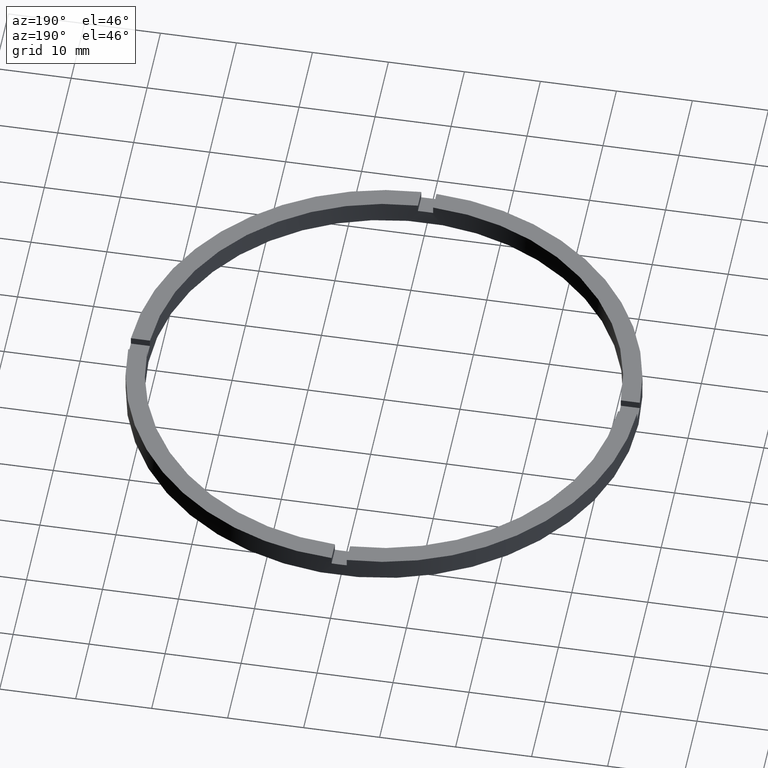
[diagram: clean part render]
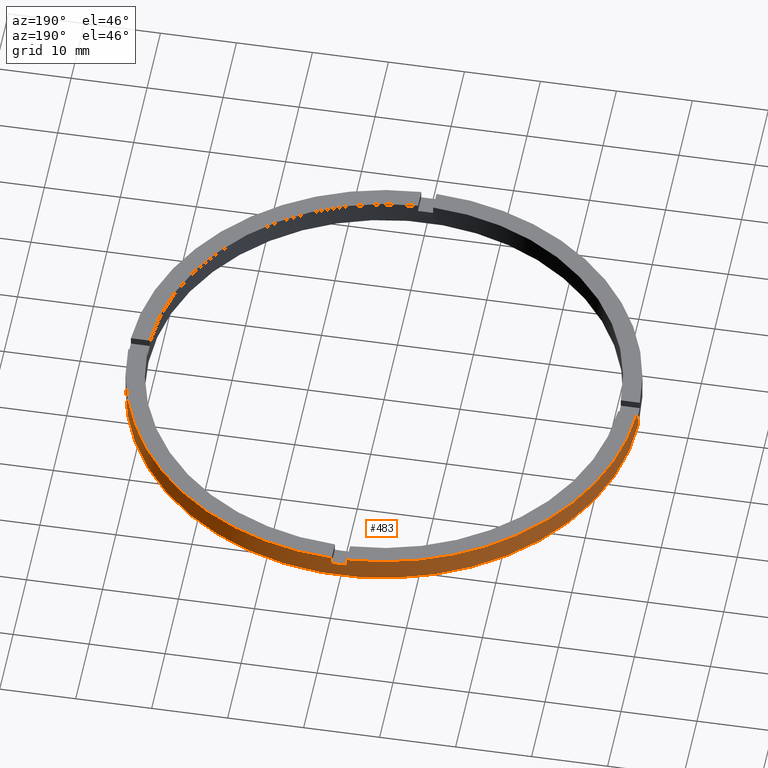
[diagram: same view with one face highlighted and labeled with its STEP entity id]
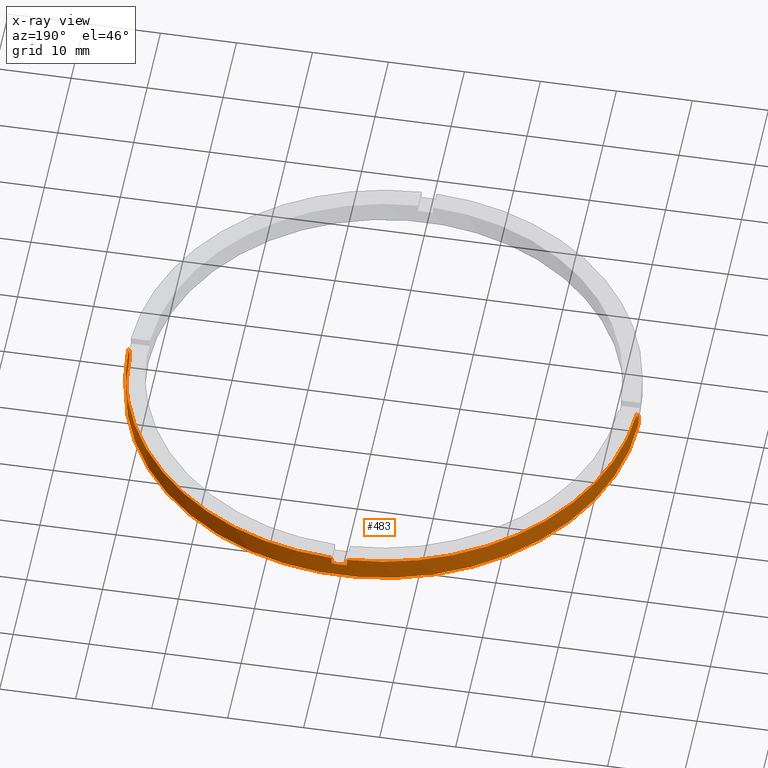
[diagram: x-ray of the same camera — body ghosted, the highlighted face saturated]
A machine part, auxiliary view. The second image highlights one B-rep face of the part: STEP entity #483.
The next image is the same camera in x-ray: the body ghosted, the highlighted face saturated — about 0% of this face is hidden behind the body in this view.
In plain terms, the highlighted cylindrical surface (partial cylindrical patch) has radius 33.5 mm, axis along (-0, -0, -1).
Its self-contained STEP definition (entity closure, byte-faithful):
#4 = EDGE_CURVE ( 'NONE', #711, #41, #443, .T. ) ;
#8 = CIRCLE ( 'NONE', #248, 33.50000000000000000 ) ;
#13 = EDGE_CURVE ( 'NONE', #188, #596, #182, .T. ) ;
#22 = ORIENTED_EDGE ( 'NONE', *, *, #759, .T. ) ;
#25 = EDGE_CURVE ( 'NONE', #188, #80, #120, .T. ) ;
#29 = DIRECTION ( 'NONE',  ( -0.000000000000000000, -0.000000000000000000, -1.000000000000000000 ) ) ;
#31 = ORIENTED_EDGE ( 'NONE', *, *, #668, .T. ) ;
#39 = VECTOR ( 'NONE', #29, 1000.000000000000000 ) ;
#40 = AXIS2_PLACEMENT_3D ( 'NONE', #116, #269, #658 ) ;
#41 = VERTEX_POINT ( 'NONE', #523 ) ;
#71 = DIRECTION ( 'NONE',  ( 0.000000000000000000, 0.000000000000000000, 1.000000000000000000 ) ) ;
#73 = DIRECTION ( 'NONE',  ( 0.000000000000000000, 0.000000000000000000, 1.000000000000000000 ) ) ;
#80 = VERTEX_POINT ( 'NONE', #436 ) ;
#109 = EDGE_CURVE ( 'NONE', #299, #80, #379, .T. ) ;
#111 = DIRECTION ( 'NONE',  ( 1.000000000000000000, 0.000000000000000000, 0.000000000000000000 ) ) ;
#115 = VERTEX_POINT ( 'NONE', #471 ) ;
#116 = CARTESIAN_POINT ( 'NONE',  ( 0.000000000000000000, 0.000000000000000000, 3.000000000000000000 ) ) ;
#120 = LINE ( 'NONE', #479, #372 ) ;
#123 = AXIS2_PLACEMENT_3D ( 'NONE', #742, #332, #261 ) ;
#130 = CARTESIAN_POINT ( 'NONE',  ( 0.000000000000000000, 0.000000000000000000, 2.000000000000000000 ) ) ;
#135 = ORIENTED_EDGE ( 'NONE', *, *, #722, .T. ) ;
#136 = CARTESIAN_POINT ( 'NONE',  ( 33.50000000000000000, 4.102566777143633774E-15, 3.000000000000000000 ) ) ;
#145 = CIRCLE ( 'NONE', #499, 33.50000000000000000 ) ;
#155 = CYLINDRICAL_SURFACE ( 'NONE', #123, 33.50000000000000000 ) ;
#157 = FACE_OUTER_BOUND ( 'NONE', #575, .T. ) ;
#158 = CARTESIAN_POINT ( 'NONE',  ( 33.48507130050644776, 0.9999999999998416822, 3.000000000000000000 ) ) ;
#182 = CIRCLE ( 'NONE', #478, 33.50000000000000000 ) ;
#188 = VERTEX_POINT ( 'NONE', #739 ) ;
#224 = DIRECTION ( 'NONE',  ( 1.000000000000000000, 0.000000000000000000, 0.000000000000000000 ) ) ;
#225 = AXIS2_PLACEMENT_3D ( 'NONE', #744, #500, #505 ) ;
#229 = DIRECTION ( 'NONE',  ( 0.000000000000000000, 0.000000000000000000, 1.000000000000000000 ) ) ;
#234 = CARTESIAN_POINT ( 'NONE',  ( -33.50000000000000000, 0.000000000000000000, 3.000000000000000000 ) ) ;
#243 = LINE ( 'NONE', #136, #777 ) ;
#246 = VECTOR ( 'NONE', #728, 1000.000000000000000 ) ;
#248 = AXIS2_PLACEMENT_3D ( 'NONE', #753, #652, #470 ) ;
#253 = AXIS2_PLACEMENT_3D ( 'NONE', #130, #510, #111 ) ;
#260 = VECTOR ( 'NONE', #71, 1000.000000000000000 ) ;
#261 = DIRECTION ( 'NONE',  ( -1.000000000000000000, 0.000000000000000000, 0.000000000000000000 ) ) ;
#265 = LINE ( 'NONE', #395, #246 ) ;
#267 = EDGE_CURVE ( 'NONE', #371, #637, #574, .T. ) ;
#269 = DIRECTION ( 'NONE',  ( 0.000000000000000000, 0.000000000000000000, 1.000000000000000000 ) ) ;
#281 = VERTEX_POINT ( 'NONE', #598 ) ;
#290 = ORIENTED_EDGE ( 'NONE', *, *, #267, .F. ) ;
#299 = VERTEX_POINT ( 'NONE', #669 ) ;
#301 = ORIENTED_EDGE ( 'NONE', *, *, #25, .T. ) ;
#306 = CARTESIAN_POINT ( 'NONE',  ( -33.50000000000000000, 0.000000000000000000, 2.000000000000000000 ) ) ;
#326 = ORIENTED_EDGE ( 'NONE', *, *, #677, .F. ) ;
#332 = DIRECTION ( 'NONE',  ( -0.000000000000000000, -0.000000000000000000, -1.000000000000000000 ) ) ;
#356 = DIRECTION ( 'NONE',  ( -0.000000000000000000, -0.000000000000000000, -1.000000000000000000 ) ) ;
#371 = VERTEX_POINT ( 'NONE', #306 ) ;
#372 = VECTOR ( 'NONE', #476, 1000.000000000000000 ) ;
#379 = CIRCLE ( 'NONE', #253, 33.50000000000000000 ) ;
#386 = ORIENTED_EDGE ( 'NONE', *, *, #4, .F. ) ;
#395 = CARTESIAN_POINT ( 'NONE',  ( 0.9999999999999753530, 33.48507130050644776, 3.000000000000000000 ) ) ;
#433 = EDGE_CURVE ( 'NONE', #115, #371, #145, .T. ) ;
#434 = CARTESIAN_POINT ( 'NONE',  ( 0.000000000000000000, 0.000000000000000000, 3.000000000000000000 ) ) ;
#436 = CARTESIAN_POINT ( 'NONE',  ( -1.000000000000024647, 33.48507130050644065, 2.000000000000000000 ) ) ;
#440 = ORIENTED_EDGE ( 'NONE', *, *, #109, .F. ) ;
#443 = CIRCLE ( 'NONE', #225, 33.50000000000000000 ) ;
#450 = CARTESIAN_POINT ( 'NONE',  ( -33.48507130050644776, 0.9999999999999735767, 3.000000000000000000 ) ) ;
#460 = VERTEX_POINT ( 'NONE', #158 ) ;
#470 = DIRECTION ( 'NONE',  ( 1.000000000000000000, 0.000000000000000000, 0.000000000000000000 ) ) ;
#471 = CARTESIAN_POINT ( 'NONE',  ( -33.48507130050644776, 0.9999999999999735767, 2.000000000000000000 ) ) ;
#476 = DIRECTION ( 'NONE',  ( -0.000000000000000000, -0.000000000000000000, -1.000000000000000000 ) ) ;
#478 = AXIS2_PLACEMENT_3D ( 'NONE', #434, #229, #224 ) ;
#479 = CARTESIAN_POINT ( 'NONE',  ( -1.000000000000024647, 33.48507130050644065, 3.000000000000000000 ) ) ;
#483 = ADVANCED_FACE ( 'NONE', ( #157 ), #155, .T. ) ;
#499 = AXIS2_PLACEMENT_3D ( 'NONE', #774, #73, #781 ) ;
#500 = DIRECTION ( 'NONE',  ( 0.000000000000000000, 0.000000000000000000, 1.000000000000000000 ) ) ;
#505 = DIRECTION ( 'NONE',  ( 1.000000000000000000, 0.000000000000000000, 0.000000000000000000 ) ) ;
#509 = VECTOR ( 'NONE', #643, 1000.000000000000000 ) ;
#510 = DIRECTION ( 'NONE',  ( 0.000000000000000000, -0.000000000000000000, 1.000000000000000000 ) ) ;
#523 = CARTESIAN_POINT ( 'NONE',  ( 33.48507130050644776, 0.9999999999998416822, 2.000000000000000000 ) ) ;
#532 = CIRCLE ( 'NONE', #40, 33.50000000000000000 ) ;
#549 = ORIENTED_EDGE ( 'NONE', *, *, #690, .T. ) ;
#557 = CARTESIAN_POINT ( 'NONE',  ( -33.50000000000000000, 0.000000000000000000, 0.000000000000000000 ) ) ;
#574 = LINE ( 'NONE', #234, #39 ) ;
#575 = EDGE_LOOP ( 'NONE', ( #386, #549, #31, #290, #698, #22, #691, #301, #440, #135, #326, #713 ) ) ;
#596 = VERTEX_POINT ( 'NONE', #733 ) ;
#598 = CARTESIAN_POINT ( 'NONE',  ( 0.9999999999999753530, 33.48507130050644776, 3.000000000000000000 ) ) ;
#630 = EDGE_CURVE ( 'NONE', #460, #41, #783, .T. ) ;
#637 = VERTEX_POINT ( 'NONE', #557 ) ;
#643 = DIRECTION ( 'NONE',  ( -0.000000000000000000, -0.000000000000000000, -1.000000000000000000 ) ) ;
#648 = VERTEX_POINT ( 'NONE', #697 ) ;
#652 = DIRECTION ( 'NONE',  ( 0.000000000000000000, 0.000000000000000000, 1.000000000000000000 ) ) ;
#658 = DIRECTION ( 'NONE',  ( 1.000000000000000000, 0.000000000000000000, 0.000000000000000000 ) ) ;
#668 = EDGE_CURVE ( 'NONE', #648, #637, #8, .T. ) ;
#669 = CARTESIAN_POINT ( 'NONE',  ( 0.9999999999999753530, 33.48507130050644776, 2.000000000000000000 ) ) ;
#674 = CARTESIAN_POINT ( 'NONE',  ( 33.50000000000000000, 4.102566777143633774E-15, 2.000000000000000000 ) ) ;
#677 = EDGE_CURVE ( 'NONE', #460, #281, #532, .T. ) ;
#690 = EDGE_CURVE ( 'NONE', #711, #648, #243, .T. ) ;
#691 = ORIENTED_EDGE ( 'NONE', *, *, #13, .F. ) ;
#697 = CARTESIAN_POINT ( 'NONE',  ( 33.50000000000000000, 4.102566777143633774E-15, 0.000000000000000000 ) ) ;
#698 = ORIENTED_EDGE ( 'NONE', *, *, #433, .F. ) ;
#711 = VERTEX_POINT ( 'NONE', #674 ) ;
#713 = ORIENTED_EDGE ( 'NONE', *, *, #630, .T. ) ;
#722 = EDGE_CURVE ( 'NONE', #299, #281, #265, .T. ) ;
#728 = DIRECTION ( 'NONE',  ( 0.000000000000000000, 0.000000000000000000, 1.000000000000000000 ) ) ;
#733 = CARTESIAN_POINT ( 'NONE',  ( -33.48507130050644776, 0.9999999999999735767, 3.000000000000000000 ) ) ;
#739 = CARTESIAN_POINT ( 'NONE',  ( -1.000000000000024647, 33.48507130050644065, 3.000000000000000000 ) ) ;
#742 = CARTESIAN_POINT ( 'NONE',  ( 0.000000000000000000, 0.000000000000000000, 3.000000000000000000 ) ) ;
#744 = CARTESIAN_POINT ( 'NONE',  ( 0.000000000000000000, 0.000000000000000000, 2.000000000000000000 ) ) ;
#746 = CARTESIAN_POINT ( 'NONE',  ( 33.48507130050644776, 0.9999999999998416822, 3.000000000000000000 ) ) ;
#753 = CARTESIAN_POINT ( 'NONE',  ( 0.000000000000000000, 0.000000000000000000, 0.000000000000000000 ) ) ;
#759 = EDGE_CURVE ( 'NONE', #115, #596, #782, .T. ) ;
#774 = CARTESIAN_POINT ( 'NONE',  ( 0.000000000000000000, 0.000000000000000000, 2.000000000000000000 ) ) ;
#777 = VECTOR ( 'NONE', #356, 1000.000000000000000 ) ;
#781 = DIRECTION ( 'NONE',  ( 1.000000000000000000, 0.000000000000000000, 0.000000000000000000 ) ) ;
#782 = LINE ( 'NONE', #450, #260 ) ;
#783 = LINE ( 'NONE', #746, #509 ) ;